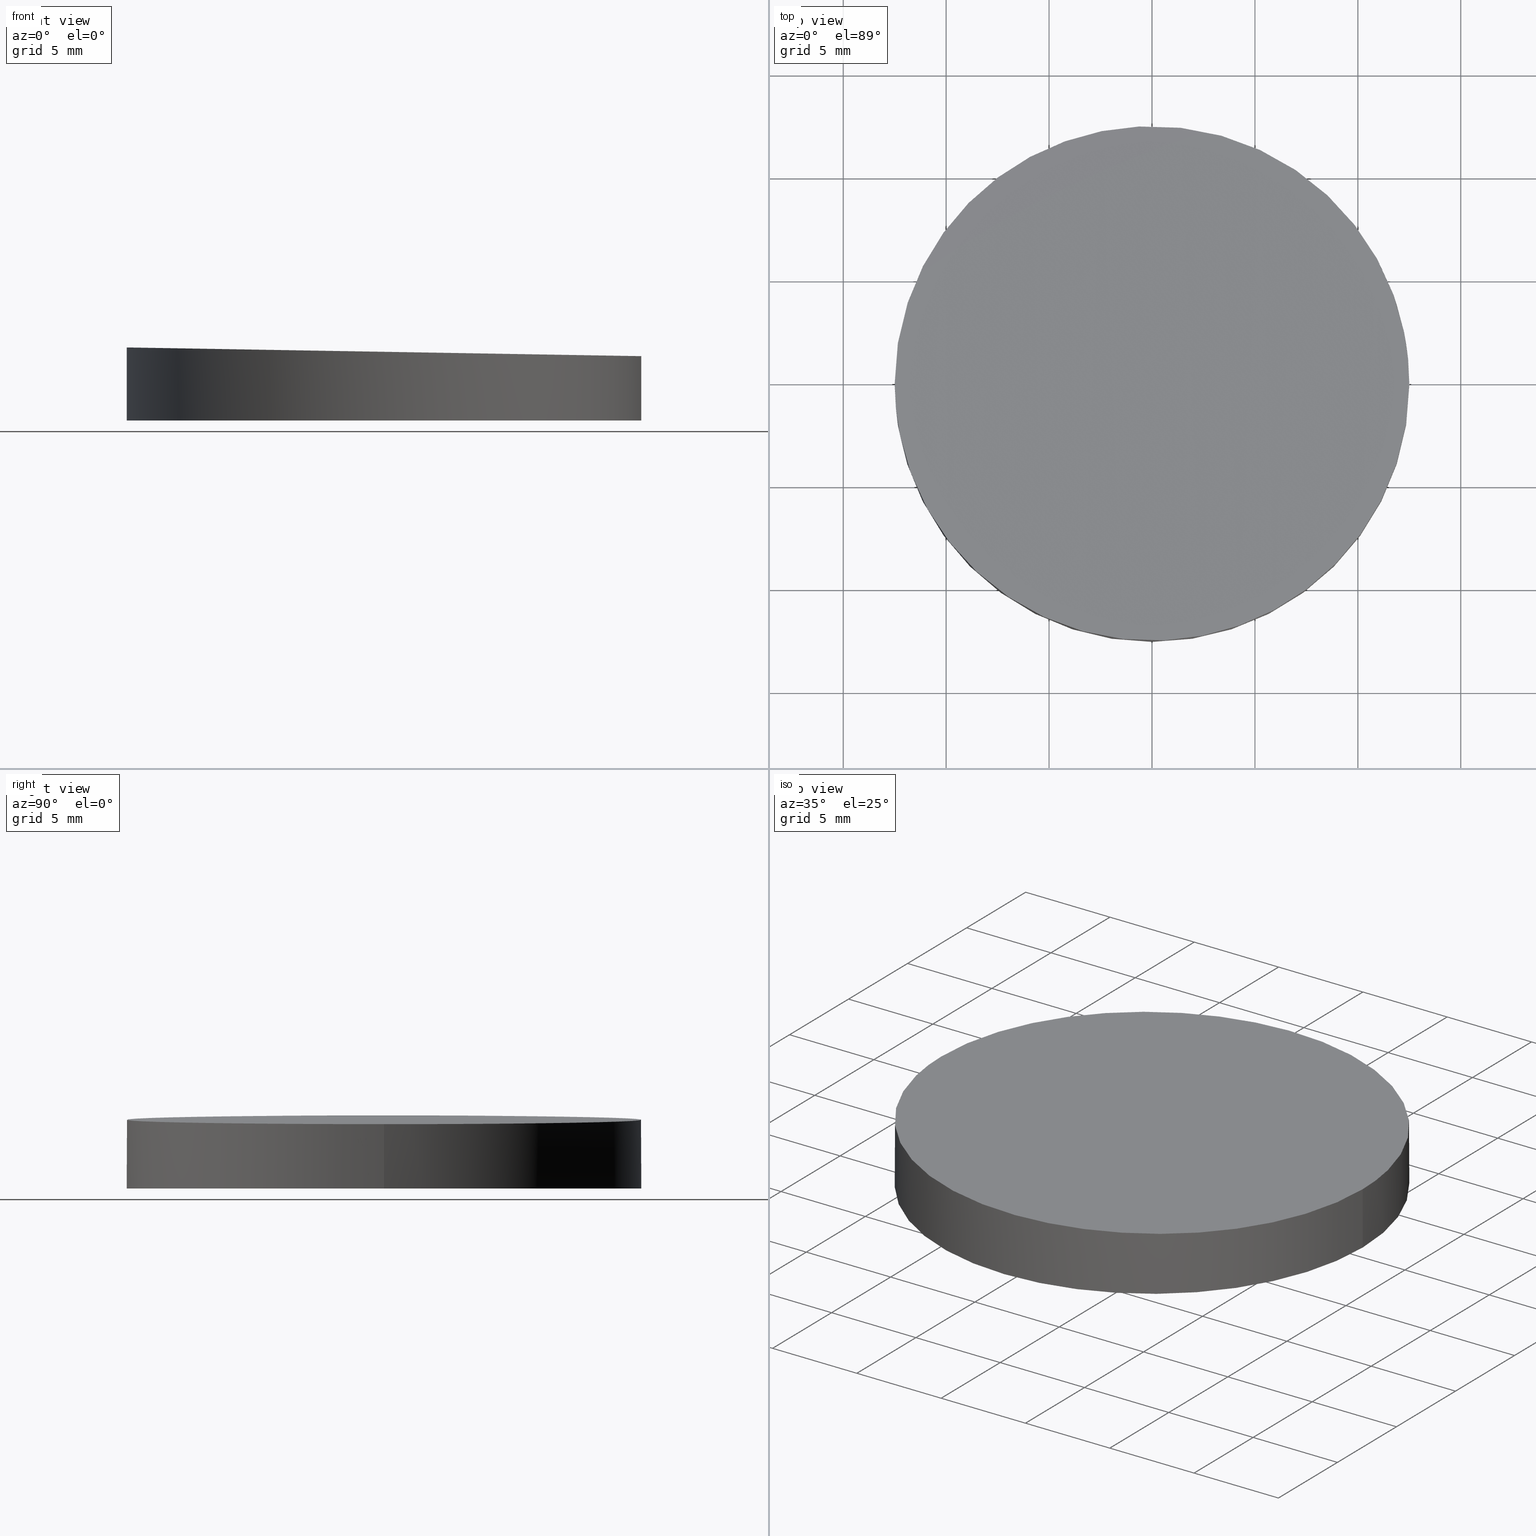
[diagram: canonical four-view strip — front | top / right | iso, engineering-drawing reading convention]
A machine part, canonical four-view strip (front | top / right | iso — engineering-drawing reading convention). The complete STEP part file that produces these views, byte-faithful:
ISO-10303-21;
HEADER;
FILE_DESCRIPTION (( 'STEP AP203' ),
    '1' );
FILE_NAME ('373500.STEP',
    '2019-07-24T07:19:17',
    ( '' ),
    ( '' ),
    'SwSTEP 2.0',
    'SolidWorks 2016',
    '' );
FILE_SCHEMA (( 'CONFIG_CONTROL_DESIGN' ));
ENDSEC;

DATA;
#1 = EDGE_CURVE ( 'NONE', #100, #24, #235, .T. ) ;
#2 =( LENGTH_UNIT ( ) NAMED_UNIT ( * ) SI_UNIT ( .MILLI., .METRE. ) );
#3 = COORDINATED_UNIVERSAL_TIME_OFFSET ( 8, 0, .AHEAD. ) ;
#4 = CARTESIAN_POINT ( 'NONE',  ( -12.49999999999999600, 0.0000000000000000000, 0.0000000000000000000 ) ) ;
#5 = LOCAL_TIME ( 15, 19, 17.00000000000000000, #171 ) ;
#6 = PERSON_AND_ORGANIZATION_ROLE ( 'design_supplier' ) ;
#7 = ORIENTED_EDGE ( 'NONE', *, *, #211, .F. ) ;
#8 = CALENDAR_DATE ( 2019, 24, 7 ) ;
#9 = EDGE_LOOP ( 'NONE', ( #157, #165 ) ) ;
#10 = CC_DESIGN_APPROVAL ( #59, ( #32 ) ) ;
#11 = COORDINATED_UNIVERSAL_TIME_OFFSET ( 8, 0, .AHEAD. ) ;
#12 = APPROVAL_PERSON_ORGANIZATION ( #127, #184, #218 ) ;
#13 = CARTESIAN_POINT ( 'NONE',  ( 0.0000000000000000000, 0.0000000000000000000, 0.0000000000000000000 ) ) ;
#14 = PERSON_AND_ORGANIZATION ( #60, #144 ) ;
#15 = CARTESIAN_POINT ( 'NONE',  ( -12.49999999999999600, 0.0000000000000000000, 10.00000000000000000 ) ) ;
#16 = APPROVAL_PERSON_ORGANIZATION ( #250, #18, #108 ) ;
#17 = EDGE_LOOP ( 'NONE', ( #224, #116, #167, #130 ) ) ;
#18 = APPROVAL ( #236, 'δָ��' ) ;
#19 = PERSON_AND_ORGANIZATION_ROLE ( 'creator' ) ;
#20 = APPLICATION_PROTOCOL_DEFINITION ( 'international standard', 'config_control_design', 1994, #180 ) ;
#21 = DIRECTION ( 'NONE',  ( -0.0000000000000000000, -0.0000000000000000000, -1.000000000000000000 ) ) ;
#22 = PRODUCT_RELATED_PRODUCT_CATEGORY ( 'detail', '', ( #137 ) ) ;
#23 = PLANE ( 'NONE',  #86 ) ;
#24 = VERTEX_POINT ( 'NONE', #33 ) ;
#25 = PERSON_AND_ORGANIZATION_ROLE ( 'creator' ) ;
#26 = LOCAL_TIME ( 15, 19, 17.00000000000000000, #252 ) ;
#27 = DATE_TIME_ROLE ( 'creation_date' ) ;
#28 = LINE ( 'NONE', #15, #239 ) ;
#29 = UNCERTAINTY_MEASURE_WITH_UNIT (LENGTH_MEASURE( 1.000000000000000100E-005 ), #2, 'distance_accuracy_value', 'NONE');
#30 = APPROVAL_DATE_TIME ( #253, #35 ) ;
#31 = CC_DESIGN_APPROVAL ( #184, ( #128 ) ) ;
#32 = SECURITY_CLASSIFICATION ( '', '', #161 ) ;
#33 = CARTESIAN_POINT ( 'NONE',  ( -12.49999999999999600, 0.0000000000000000000, 3.551528623615978200 ) ) ;
#34 = CARTESIAN_POINT ( 'NONE',  ( 12.49999999999999600, 1.530808498934191100E-015, 10.00000000000000000 ) ) ;
#35 = APPROVAL ( #43, 'δָ��' ) ;
#36 = PERSON_AND_ORGANIZATION ( #60, #144 ) ;
#37 = AXIS2_PLACEMENT_3D ( 'NONE', #170, #225, #151 ) ;
#38 = CALENDAR_DATE ( 2019, 24, 7 ) ;
#39 = MECHANICAL_CONTEXT ( 'NONE', #145, 'mechanical' ) ;
#40 = VERTEX_POINT ( 'NONE', #189 ) ;
#41 = CARTESIAN_POINT ( 'NONE',  ( 0.0000000000000000000, 0.0000000000000000000, 0.0000000000000000000 ) ) ;
#42 = DIRECTION ( 'NONE',  ( -0.01692888503989779800, 0.0000000000000000000, -0.9998566961576573800 ) ) ;
#43 = APPROVAL_STATUS ( 'not_yet_approved' ) ;
#44 = LOCAL_TIME ( 15, 19, 17.00000000000000000, #103 ) ;
#45 = SHAPE_DEFINITION_REPRESENTATION ( #222, #216 ) ;
#46 = PLANE ( 'NONE',  #52 ) ;
#47 = COORDINATED_UNIVERSAL_TIME_OFFSET ( 8, 0, .AHEAD. ) ;
#48 = DATE_TIME_ROLE ( 'classification_date' ) ;
#49 = CC_DESIGN_DATE_AND_TIME_ASSIGNMENT ( #187, #48, ( #32 ) ) ;
#50 = CC_DESIGN_APPROVAL ( #35, ( #76 ) ) ;
#51 = LOCAL_TIME ( 15, 19, 17.00000000000000000, #3 ) ;
#52 = AXIS2_PLACEMENT_3D ( 'NONE', #41, #141, #113 ) ;
#53 = PRODUCT_DEFINITION_FORMATION_WITH_SPECIFIED_SOURCE ( '�κ�', '', #137, .NOT_KNOWN. ) ;
#54 = CARTESIAN_POINT ( 'NONE',  ( 0.0000000000000000000, 0.0000000000000000000, 10.00000000000000000 ) ) ;
#55 = DIRECTION ( 'NONE',  ( 0.0000000000000000000, 0.0000000000000000000, 1.000000000000000000 ) ) ;
#56 = COORDINATED_UNIVERSAL_TIME_OFFSET ( 8, 0, .AHEAD. ) ;
#57 = ORIENTED_EDGE ( 'NONE', *, *, #150, .F. ) ;
#58 = CALENDAR_DATE ( 2019, 24, 7 ) ;
#59 = APPROVAL ( #96, 'δָ��' ) ;
#60 = PERSON ( 'δָ��', 'δָ��', 'δָ��', ('δָ��'), ('δָ��'), ('δָ��') ) ;
#61 = PERSON_AND_ORGANIZATION_ROLE ( 'design_owner' ) ;
#62 = APPROVAL_DATE_TIME ( #118, #78 ) ;
#63 = PERSON_AND_ORGANIZATION ( #60, #144 ) ;
#64 = CC_DESIGN_PERSON_AND_ORGANIZATION_ASSIGNMENT ( #198, #19, ( #76 ) ) ;
#65 = MECHANICAL_CONTEXT ( 'NONE', #180, 'mechanical' ) ;
#66 = DATE_TIME_ROLE ( 'creation_date' ) ;
#67 = PERSON_AND_ORGANIZATION_ROLE ( 'creator' ) ;
#68 = CC_DESIGN_APPROVAL ( #247, ( #53 ) ) ;
#69 = CIRCLE ( 'NONE', #98, 12.49999999999999600 ) ;
#70 = APPROVAL_ROLE ( '' ) ;
#71 = ORIENTED_EDGE ( 'NONE', *, *, #230, .T. ) ;
#72 = COORDINATED_UNIVERSAL_TIME_OFFSET ( 8, 0, .AHEAD. ) ;
#73 = CALENDAR_DATE ( 2019, 24, 7 ) ;
#74 = ORIENTED_EDGE ( 'NONE', *, *, #150, .T. ) ;
#75 = DIRECTION ( 'NONE',  ( -1.000000000000000000, 0.0000000000000000000, 0.0000000000000000000 ) ) ;
#76 = PRODUCT_DEFINITION ( 'δ֪', '', #128, #84 ) ;
#77 = ADVANCED_FACE ( 'NONE', ( #213 ), #95, .T. ) ;
#78 = APPROVAL ( #111, 'δָ��' ) ;
#79 = DIRECTION ( 'NONE',  ( -0.0000000000000000000, -0.0000000000000000000, -1.000000000000000000 ) ) ;
#80 = PERSON_AND_ORGANIZATION ( #60, #144 ) ;
#81 = PERSON_AND_ORGANIZATION ( #60, #144 ) ;
#82 = CARTESIAN_POINT ( 'NONE',  ( 12.49999999999999600, 1.530808498934191100E-015, 3.128245839569183200 ) ) ;
#83 = CIRCLE ( 'NONE', #191, 12.49999999999999600 ) ;
#84 = DESIGN_CONTEXT ( 'detailed design', #237, 'design' ) ;
#85 = CARTESIAN_POINT ( 'NONE',  ( -12.50000000000000000, 24.99999999999998900, 3.551528623615979100 ) ) ;
#86 = AXIS2_PLACEMENT_3D ( 'NONE', #197, #42, #121 ) ;
#87 = CALENDAR_DATE ( 2019, 24, 7 ) ;
#88 = AXIS2_PLACEMENT_3D ( 'NONE', #109, #217, #142 ) ;
#89 = PERSON_AND_ORGANIZATION ( #60, #144 ) ;
#90 = APPLICATION_CONTEXT ( 'configuration controlled 3d designs of mechanical parts and assemblies' ) ;
#91 = DATE_TIME_ROLE ( 'classification_date' ) ;
#92 = APPROVAL_STATUS ( 'not_yet_approved' ) ;
#93 = DATE_AND_TIME ( #173, #228 ) ;
#94 = LOCAL_TIME ( 15, 19, 17.00000000000000000, #47 ) ;
#95 = CYLINDRICAL_SURFACE ( 'NONE', #122, 12.49999999999999600 ) ;
#96 = APPROVAL_STATUS ( 'not_yet_approved' ) ;
#97 = CALENDAR_DATE ( 2019, 24, 7 ) ;
#98 = AXIS2_PLACEMENT_3D ( 'NONE', #233, #124, #158 ) ;
#99 = CC_DESIGN_PERSON_AND_ORGANIZATION_ASSIGNMENT ( #36, #25, ( #53 ) ) ;
#100 = VERTEX_POINT ( 'NONE', #209 ) ;
#101 = CC_DESIGN_APPROVAL ( #78, ( #242 ) ) ;
#102 = LOCAL_TIME ( 15, 19, 17.00000000000000000, #72 ) ;
#103 = COORDINATED_UNIVERSAL_TIME_OFFSET ( 8, 0, .AHEAD. ) ;
#104 = CC_DESIGN_DATE_AND_TIME_ASSIGNMENT ( #188, #66, ( #76 ) ) ;
#105 = PERSON_AND_ORGANIZATION ( #60, #144 ) ;
#106 = VECTOR ( 'NONE', #208, 1000.000000000000000 ) ;
#107 = EDGE_LOOP ( 'NONE', ( #74, #125, #71, #7 ) ) ;
#108 = APPROVAL_ROLE ( '' ) ;
#109 = CARTESIAN_POINT ( 'NONE',  ( 0.0000000000000000000, 0.0000000000000000000, 0.0000000000000000000 ) ) ;
#110 = PERSON_AND_ORGANIZATION_ROLE ( 'design_owner' ) ;
#111 = APPROVAL_STATUS ( 'not_yet_approved' ) ;
#112 =( GEOMETRIC_REPRESENTATION_CONTEXT ( 3 ) GLOBAL_UNCERTAINTY_ASSIGNED_CONTEXT ( ( #29 ) ) GLOBAL_UNIT_ASSIGNED_CONTEXT ( ( #2, #196, #219 ) ) REPRESENTATION_CONTEXT ( 'NONE', 'WORKASPACE' ) );
#113 = DIRECTION ( 'NONE',  ( 1.000000000000000000, 0.0000000000000000000, -0.0000000000000000000 ) ) ;
#114 = CYLINDRICAL_SURFACE ( 'NONE', #37, 12.49999999999999600 ) ;
#115 = PERSON_AND_ORGANIZATION_ROLE ( 'classification_officer' ) ;
#116 = ORIENTED_EDGE ( 'NONE', *, *, #1, .T. ) ;
#117 = CARTESIAN_POINT ( 'NONE',  ( -12.49999999999999600, 0.0000000000000000000, 3.551528623615978200 ) ) ;
#118 = DATE_AND_TIME ( #38, #44 ) ;
#119 =( BOUNDED_CURVE ( )  B_SPLINE_CURVE ( 3, ( #117, #85, #132, #135 ),
 .UNSPECIFIED., .F., .T. ) 
 B_SPLINE_CURVE_WITH_KNOTS ( ( 4, 4 ),
 ( 3.141592653589793100, 6.283185307179586200 ),
 .UNSPECIFIED. ) 
 CURVE ( )  GEOMETRIC_REPRESENTATION_ITEM ( )  RATIONAL_B_SPLINE_CURVE ( ( 1.000000000000000000, 0.3333333333333333700, 0.3333333333333333700, 1.000000000000000000 ) ) 
 REPRESENTATION_ITEM ( '' )  );
#120 = PERSON_AND_ORGANIZATION_ROLE ( 'creator' ) ;
#121 = DIRECTION ( 'NONE',  ( -0.9998566961576573800, 0.0000000000000000000, 0.01692888503989779800 ) ) ;
#122 = AXIS2_PLACEMENT_3D ( 'NONE', #54, #79, #75 ) ;
#123 = COORDINATED_UNIVERSAL_TIME_OFFSET ( 8, 0, .AHEAD. ) ;
#124 = DIRECTION ( 'NONE',  ( 0.0000000000000000000, 0.0000000000000000000, 1.000000000000000000 ) ) ;
#125 = ORIENTED_EDGE ( 'NONE', *, *, #178, .T. ) ;
#126 = PERSON_AND_ORGANIZATION ( #60, #144 ) ;
#127 = PERSON_AND_ORGANIZATION ( #60, #144 ) ;
#128 = PRODUCT_DEFINITION_FORMATION_WITH_SPECIFIED_SOURCE ( '�κ�', '', #133, .NOT_KNOWN. ) ;
#129 = AXIS2_PLACEMENT_3D ( 'NONE', #215, #143, #238 ) ;
#130 = ORIENTED_EDGE ( 'NONE', *, *, #139, .T. ) ;
#131 = APPROVAL_DATE_TIME ( #177, #18 ) ;
#132 = CARTESIAN_POINT ( 'NONE',  ( 12.50000000000000000, 24.99999999999998900, 3.128245839569182800 ) ) ;
#133 = PRODUCT ( '373500', '373500', '', ( #65 ) ) ;
#134 = PRODUCT_RELATED_PRODUCT_CATEGORY ( 'detail', '', ( #133 ) ) ;
#135 = CARTESIAN_POINT ( 'NONE',  ( 12.49999999999999600, 1.530808498934191100E-015, 3.128245839569183200 ) ) ;
#136 = DATE_AND_TIME ( #58, #182 ) ;
#137 = PRODUCT ( '373500', '373500', '', ( #39 ) ) ;
#138 = FACE_OUTER_BOUND ( 'NONE', #17, .T. ) ;
#139 = EDGE_CURVE ( 'NONE', #210, #40, #83, .T. ) ;
#140 = CLOSED_SHELL ( 'NONE', ( #77, #206, #226, #246 ) ) ;
#141 = DIRECTION ( 'NONE',  ( 0.0000000000000000000, 0.0000000000000000000, 1.000000000000000000 ) ) ;
#142 = DIRECTION ( 'NONE',  ( 1.000000000000000000, 0.0000000000000000000, 0.0000000000000000000 ) ) ;
#143 = DIRECTION ( 'NONE',  ( 0.0000000000000000000, 0.0000000000000000000, 1.000000000000000000 ) ) ;
#144 = ORGANIZATION ( 'δָ��', 'δָ��', '' ) ;
#145 = APPLICATION_CONTEXT ( 'configuration controlled 3d designs of mechanical parts and assemblies' ) ;
#146 = CC_DESIGN_PERSON_AND_ORGANIZATION_ASSIGNMENT ( #14, #110, ( #133 ) ) ;
#147 = APPLICATION_PROTOCOL_DEFINITION ( 'international standard', 'config_control_design', 1994, #145 ) ;
#148 = APPROVAL_DATE_TIME ( #220, #59 ) ;
#149 = DATE_AND_TIME ( #203, #194 ) ;
#150 = EDGE_CURVE ( 'NONE', #24, #100, #119, .T. ) ;
#151 = DIRECTION ( 'NONE',  ( -1.000000000000000000, 0.0000000000000000000, 0.0000000000000000000 ) ) ;
#152 = PERSON_AND_ORGANIZATION ( #60, #144 ) ;
#153 = LOCAL_TIME ( 15, 19, 17.00000000000000000, #174 ) ;
#154 = CC_DESIGN_PERSON_AND_ORGANIZATION_ASSIGNMENT ( #81, #199, ( #242 ) ) ;
#155 = APPROVAL_ROLE ( '' ) ;
#156 = CC_DESIGN_PERSON_AND_ORGANIZATION_ASSIGNMENT ( #126, #120, ( #195 ) ) ;
#157 = ORIENTED_EDGE ( 'NONE', *, *, #139, .F. ) ;
#158 = DIRECTION ( 'NONE',  ( 1.000000000000000000, 0.0000000000000000000, 0.0000000000000000000 ) ) ;
#159 = APPLICATION_PROTOCOL_DEFINITION ( 'international standard', 'config_control_design', 1994, #237 ) ;
#160 = PERSON_AND_ORGANIZATION ( #60, #144 ) ;
#161 = SECURITY_CLASSIFICATION_LEVEL ( 'unclassified' ) ;
#162 = CC_DESIGN_PERSON_AND_ORGANIZATION_ASSIGNMENT ( #175, #61, ( #137 ) ) ;
#163 = APPROVAL_ROLE ( '' ) ;
#164 = APPROVAL_PERSON_ORGANIZATION ( #223, #35, #181 ) ;
#165 = ORIENTED_EDGE ( 'NONE', *, *, #230, .F. ) ;
#166 = APPROVAL_PERSON_ORGANIZATION ( #152, #59, #70 ) ;
#167 = ORIENTED_EDGE ( 'NONE', *, *, #211, .T. ) ;
#168 = CC_DESIGN_SECURITY_CLASSIFICATION ( #242, ( #128 ) ) ;
#169 = CARTESIAN_POINT ( 'NONE',  ( -12.49999999999999500, -24.99999999999998900, 3.551528623615979100 ) ) ;
#170 = CARTESIAN_POINT ( 'NONE',  ( 0.0000000000000000000, 0.0000000000000000000, 10.00000000000000000 ) ) ;
#171 = COORDINATED_UNIVERSAL_TIME_OFFSET ( 8, 0, .AHEAD. ) ;
#172 = CC_DESIGN_SECURITY_CLASSIFICATION ( #32, ( #53 ) ) ;
#173 = CALENDAR_DATE ( 2019, 24, 7 ) ;
#174 = COORDINATED_UNIVERSAL_TIME_OFFSET ( 8, 0, .AHEAD. ) ;
#175 = PERSON_AND_ORGANIZATION ( #60, #144 ) ;
#176 = CC_DESIGN_PERSON_AND_ORGANIZATION_ASSIGNMENT ( #63, #67, ( #128 ) ) ;
#177 = DATE_AND_TIME ( #245, #26 ) ;
#178 = EDGE_CURVE ( 'NONE', #100, #40, #204, .T. ) ;
#179 = APPROVAL_PERSON_ORGANIZATION ( #205, #78, #155 ) ;
#180 = APPLICATION_CONTEXT ( 'configuration controlled 3d designs of mechanical parts and assemblies' ) ;
#181 = APPROVAL_ROLE ( '' ) ;
#182 = LOCAL_TIME ( 15, 19, 17.00000000000000000, #123 ) ;
#183 = MANIFOLD_SOLID_BREP ( '�г�-����1', #140 ) ;
#184 = APPROVAL ( #92, 'δָ��' ) ;
#185 = APPROVAL_STATUS ( 'not_yet_approved' ) ;
#186 = FACE_OUTER_BOUND ( 'NONE', #9, .T. ) ;
#187 = DATE_AND_TIME ( #193, #5 ) ;
#188 = DATE_AND_TIME ( #73, #153 ) ;
#189 = CARTESIAN_POINT ( 'NONE',  ( 12.49999999999999600, 1.530808498934191100E-015, 0.0000000000000000000 ) ) ;
#190 = ORIENTED_EDGE ( 'NONE', *, *, #1, .F. ) ;
#191 = AXIS2_PLACEMENT_3D ( 'NONE', #13, #55, #248 ) ;
#192 = CC_DESIGN_APPROVAL ( #18, ( #195 ) ) ;
#193 = CALENDAR_DATE ( 2019, 24, 7 ) ;
#194 = LOCAL_TIME ( 15, 19, 17.00000000000000000, #56 ) ;
#195 = PRODUCT_DEFINITION ( 'δ֪', '', #53, #202 ) ;
#196 =( NAMED_UNIT ( * ) PLANE_ANGLE_UNIT ( ) SI_UNIT ( $, .RADIAN. ) );
#197 = CARTESIAN_POINT ( 'NONE',  ( 12.49999999999999600, -25.00000000000000000, 3.128245839569183200 ) ) ;
#198 = PERSON_AND_ORGANIZATION ( #60, #144 ) ;
#199 = PERSON_AND_ORGANIZATION_ROLE ( 'classification_officer' ) ;
#200 = FACE_OUTER_BOUND ( 'NONE', #234, .T. ) ;
#201 = SECURITY_CLASSIFICATION_LEVEL ( 'unclassified' ) ;
#202 = DESIGN_CONTEXT ( 'detailed design', #90, 'design' ) ;
#203 = CALENDAR_DATE ( 2019, 24, 7 ) ;
#204 = LINE ( 'NONE', #34, #106 ) ;
#205 = PERSON_AND_ORGANIZATION ( #60, #144 ) ;
#206 = ADVANCED_FACE ( 'NONE', ( #138 ), #114, .T. ) ;
#207 = CC_DESIGN_DATE_AND_TIME_ASSIGNMENT ( #93, #27, ( #195 ) ) ;
#208 = DIRECTION ( 'NONE',  ( -0.0000000000000000000, -0.0000000000000000000, -1.000000000000000000 ) ) ;
#209 = CARTESIAN_POINT ( 'NONE',  ( 12.49999999999999600, 1.530808498934191100E-015, 3.128245839569183200 ) ) ;
#210 = VERTEX_POINT ( 'NONE', #4 ) ;
#211 = EDGE_CURVE ( 'NONE', #24, #210, #28, .T. ) ;
#212 = CC_DESIGN_DATE_AND_TIME_ASSIGNMENT ( #232, #91, ( #242 ) ) ;
#213 = FACE_OUTER_BOUND ( 'NONE', #107, .T. ) ;
#214 = APPLICATION_PROTOCOL_DEFINITION ( 'international standard', 'config_control_design', 1994, #90 ) ;
#215 = CARTESIAN_POINT ( 'NONE',  ( 0.0000000000000000000, 0.0000000000000000000, 0.0000000000000000000 ) ) ;
#216 = ADVANCED_BREP_SHAPE_REPRESENTATION ( '373500', ( #183, #88 ), #112 ) ;
#217 = DIRECTION ( 'NONE',  ( 0.0000000000000000000, 0.0000000000000000000, 1.000000000000000000 ) ) ;
#218 = APPROVAL_ROLE ( '' ) ;
#219 =( NAMED_UNIT ( * ) SI_UNIT ( $, .STERADIAN. ) SOLID_ANGLE_UNIT ( ) );
#220 = DATE_AND_TIME ( #87, #102 ) ;
#221 = CC_DESIGN_PERSON_AND_ORGANIZATION_ASSIGNMENT ( #89, #6, ( #53 ) ) ;
#222 = PRODUCT_DEFINITION_SHAPE ( 'NONE', 'NONE',  #195 ) ;
#223 = PERSON_AND_ORGANIZATION ( #60, #144 ) ;
#224 = ORIENTED_EDGE ( 'NONE', *, *, #178, .F. ) ;
#225 = DIRECTION ( 'NONE',  ( -0.0000000000000000000, -0.0000000000000000000, -1.000000000000000000 ) ) ;
#226 = ADVANCED_FACE ( 'NONE', ( #186 ), #46, .F. ) ;
#227 = CC_DESIGN_PERSON_AND_ORGANIZATION_ASSIGNMENT ( #105, #240, ( #128 ) ) ;
#228 = LOCAL_TIME ( 15, 19, 17.00000000000000000, #11 ) ;
#229 = CARTESIAN_POINT ( 'NONE',  ( -12.49999999999999600, 0.0000000000000000000, 3.551528623615978200 ) ) ;
#230 = EDGE_CURVE ( 'NONE', #40, #210, #69, .T. ) ;
#231 = APPROVAL_PERSON_ORGANIZATION ( #160, #247, #163 ) ;
#232 = DATE_AND_TIME ( #8, #94 ) ;
#233 = CARTESIAN_POINT ( 'NONE',  ( 0.0000000000000000000, 0.0000000000000000000, 0.0000000000000000000 ) ) ;
#234 = EDGE_LOOP ( 'NONE', ( #57, #190 ) ) ;
#235 =( BOUNDED_CURVE ( )  B_SPLINE_CURVE ( 3, ( #82, #249, #169, #229 ),
 .UNSPECIFIED., .F., .T. ) 
 B_SPLINE_CURVE_WITH_KNOTS ( ( 4, 4 ),
 ( 0.0000000000000000000, 3.141592653589793100 ),
 .UNSPECIFIED. ) 
 CURVE ( )  GEOMETRIC_REPRESENTATION_ITEM ( )  RATIONAL_B_SPLINE_CURVE ( ( 1.000000000000000000, 0.3333333333333333700, 0.3333333333333333700, 1.000000000000000000 ) ) 
 REPRESENTATION_ITEM ( '' )  );
#236 = APPROVAL_STATUS ( 'not_yet_approved' ) ;
#237 = APPLICATION_CONTEXT ( 'configuration controlled 3d designs of mechanical parts and assemblies' ) ;
#238 = DIRECTION ( 'NONE',  ( 1.000000000000000000, 0.0000000000000000000, 0.0000000000000000000 ) ) ;
#239 = VECTOR ( 'NONE', #21, 1000.000000000000000 ) ;
#240 = PERSON_AND_ORGANIZATION_ROLE ( 'design_supplier' ) ;
#241 = APPROVAL_DATE_TIME ( #136, #247 ) ;
#242 = SECURITY_CLASSIFICATION ( '', '', #201 ) ;
#243 = APPROVAL_DATE_TIME ( #149, #184 ) ;
#244 = PRODUCT_DEFINITION_SHAPE ( 'NONE', 'NONE',  #76 ) ;
#245 = CALENDAR_DATE ( 2019, 24, 7 ) ;
#246 = ADVANCED_FACE ( 'NONE', ( #200 ), #23, .F. ) ;
#247 = APPROVAL ( #185, 'δָ��' ) ;
#248 = DIRECTION ( 'NONE',  ( 1.000000000000000000, 0.0000000000000000000, 0.0000000000000000000 ) ) ;
#249 = CARTESIAN_POINT ( 'NONE',  ( 12.50000000000000000, -24.99999999999998900, 3.128245839569182800 ) ) ;
#250 = PERSON_AND_ORGANIZATION ( #60, #144 ) ;
#251 = CC_DESIGN_PERSON_AND_ORGANIZATION_ASSIGNMENT ( #80, #115, ( #32 ) ) ;
#252 = COORDINATED_UNIVERSAL_TIME_OFFSET ( 8, 0, .AHEAD. ) ;
#253 = DATE_AND_TIME ( #97, #51 ) ;
ENDSEC;
END-ISO-10303-21;
